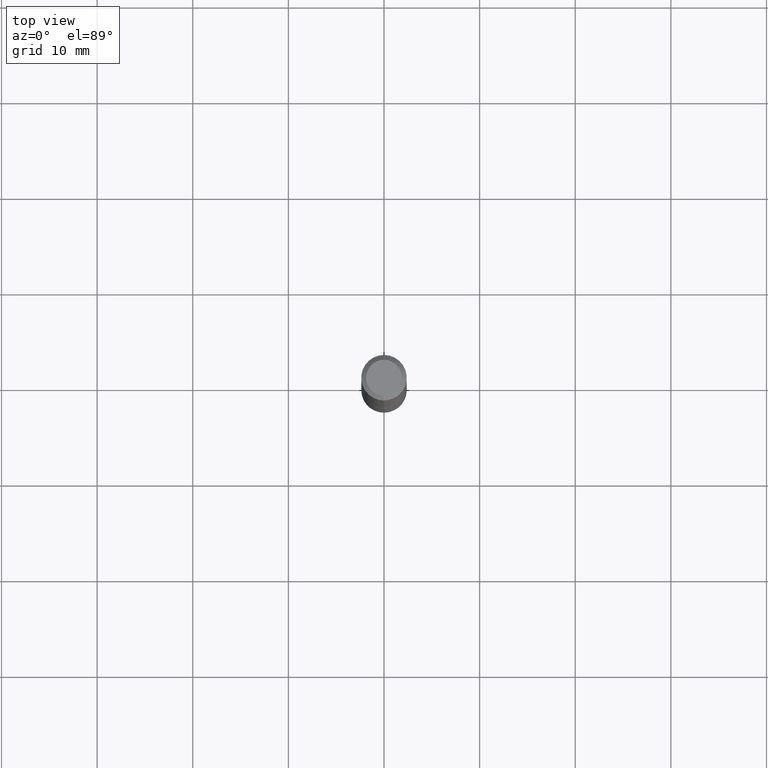
[diagram: clean part render]
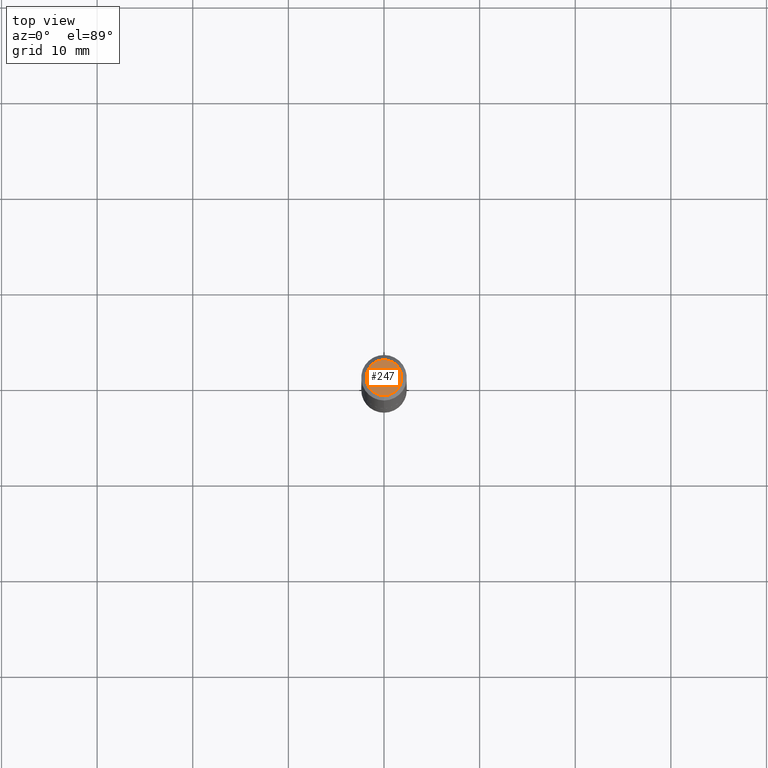
[diagram: same view with one face highlighted and labeled with its STEP entity id]
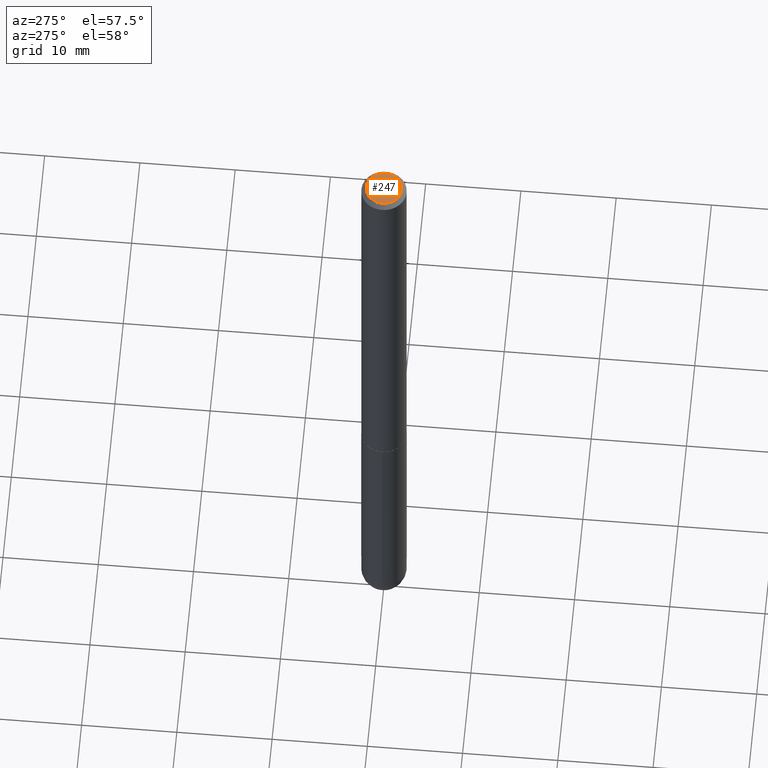
[diagram: same view with one face highlighted and labeled with its STEP entity id]
A machine part, top view. The second image highlights one B-rep face of the part: STEP entity #247.
A second angle (auxiliary view) of the same face is appended — the face is thin or edge-on in the first view.
In plain terms, the highlighted planar face has unit normal (0, -0, -1).
Its self-contained STEP definition (entity closure, byte-faithful):
#23 = CIRCLE ( 'NONE', #382, 0.07375000000000025979 ) ;
#28 = CARTESIAN_POINT ( 'NONE',  ( 4.277488671524006827E-45, -6.109778858146482464E-31, -1.749528899837831747E-16 ) ) ;
#35 = VERTEX_POINT ( 'NONE', #305 ) ;
#40 = EDGE_LOOP ( 'NONE', ( #193, #329 ) ) ;
#52 = AXIS2_PLACEMENT_3D ( 'NONE', #124, #248, #156 ) ;
#88 = DIRECTION ( 'NONE',  ( -6.982962677686265133E-15, -1.000000000000000000, 3.492242316610381541E-15 ) ) ;
#116 = DIRECTION ( 'NONE',  ( -6.982962677686265133E-15, -1.000000000000000000, 3.492242316610381541E-15 ) ) ;
#124 = CARTESIAN_POINT ( 'NONE',  ( 5.149934974793638660E-16, 0.07375000000000025979, -3.450293158419081849E-16 ) ) ;
#130 = EDGE_CURVE ( 'NONE', #236, #35, #23, .T. ) ;
#156 = DIRECTION ( 'NONE',  ( 6.982962677686265922E-15, 1.000000000000000000, -3.492242316610381935E-15 ) ) ;
#179 = CIRCLE ( 'NONE', #231, 0.07375000000000025979 ) ;
#193 = ORIENTED_EDGE ( 'NONE', *, *, #244, .T. ) ;
#217 = PLANE ( 'NONE',  #52 ) ;
#231 = AXIS2_PLACEMENT_3D ( 'NONE', #28, #373, #88 ) ;
#236 = VERTEX_POINT ( 'NONE', #246 ) ;
#241 = CARTESIAN_POINT ( 'NONE',  ( 4.277488671524006827E-45, -6.109778858146482464E-31, -1.749528899837831747E-16 ) ) ;
#244 = EDGE_CURVE ( 'NONE', #35, #236, #179, .T. ) ;
#246 = CARTESIAN_POINT ( 'NONE',  ( -5.745667073133664428E-16, -0.07375000000000025979, 8.259998086623342292E-17 ) ) ;
#247 = ADVANCED_FACE ( 'NONE', ( #343 ), #217, .F. ) ;
#248 = DIRECTION ( 'NONE',  ( 2.444937418250420314E-29, -3.492242316610381935E-15, -1.000000000000000000 ) ) ;
#305 = CARTESIAN_POINT ( 'NONE',  ( 5.848231242562259809E-16, 0.07375000000000025979, -4.325057608337997229E-16 ) ) ;
#329 = ORIENTED_EDGE ( 'NONE', *, *, #130, .T. ) ;
#343 = FACE_OUTER_BOUND ( 'NONE', #40, .T. ) ;
#373 = DIRECTION ( 'NONE',  ( -2.444937418250420594E-29, 3.492242316610381935E-15, 1.000000000000000000 ) ) ;
#382 = AXIS2_PLACEMENT_3D ( 'NONE', #241, #398, #116 ) ;
#398 = DIRECTION ( 'NONE',  ( -2.444937418250420594E-29, 3.492242316610381935E-15, 1.000000000000000000 ) ) ;